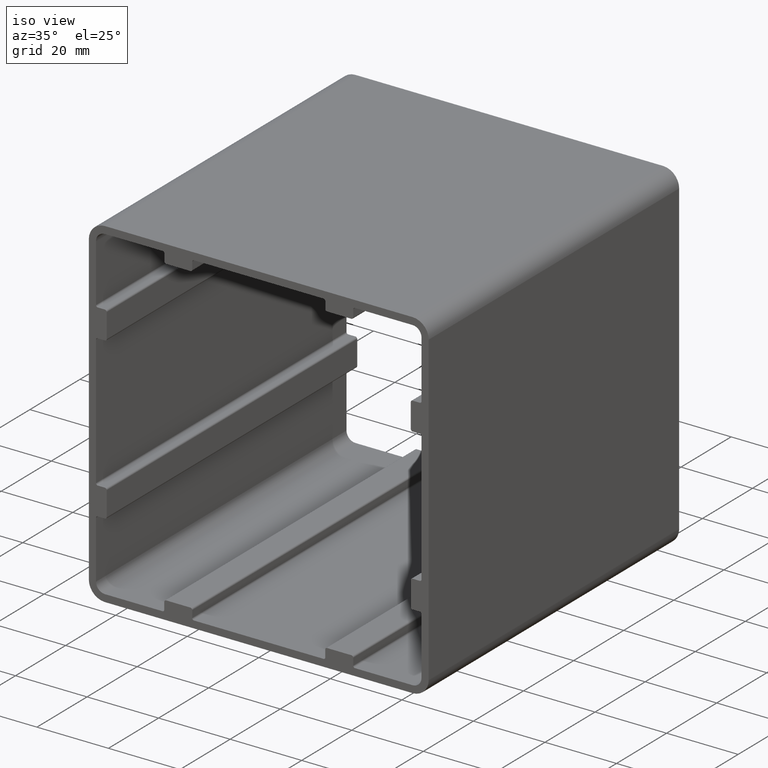
[diagram: clean part render]
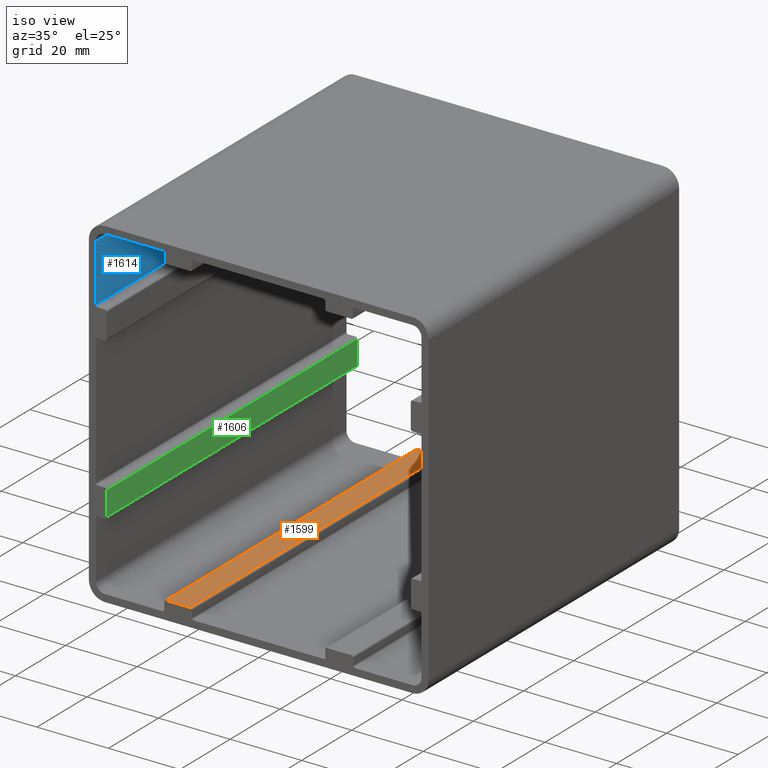
[diagram: same view with three faces highlighted in distinct colors, each labeled with its STEP entity id]
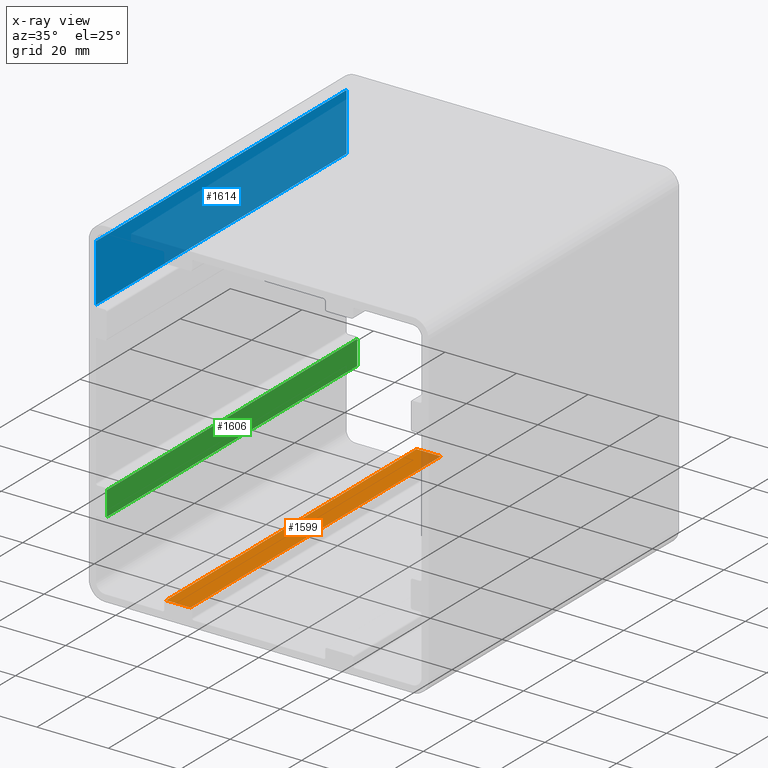
[diagram: x-ray of the same camera — body ghosted, the three highlighted faces saturated]
A machine part, iso view with three faces highlighted in distinct colors.
The next image is the same camera in x-ray (body ghosted, the three faces saturated) — at least one of them is partly hidden behind the body in this view.
Their STEP definitions:

[orange] entity #1599 — the highlighted planar face has unit normal (0, 0, -1).
#41=PLANE('',#1781);
#113=FACE_OUTER_BOUND('',#197,.T.);
#197=EDGE_LOOP('',(#1393,#1394,#1395,#1396));
#254=LINE('',#2411,#414);
#291=LINE('',#2548,#451);
#365=LINE('',#2730,#525);
#366=LINE('',#2732,#526);
#414=VECTOR('',#1900,10.);
#451=VECTOR('',#2011,10.);
#525=VECTOR('',#2219,10.);
#526=VECTOR('',#2222,10.);
#679=VERTEX_POINT('',#2408);
#680=VERTEX_POINT('',#2410);
#742=VERTEX_POINT('',#2545);
#743=VERTEX_POINT('',#2547);
#841=EDGE_CURVE('',#679,#680,#254,.T.);
#910=EDGE_CURVE('',#742,#743,#291,.T.);
#1005=EDGE_CURVE('',#743,#679,#365,.T.);
#1006=EDGE_CURVE('',#680,#742,#366,.T.);
#1393=ORIENTED_EDGE('',*,*,#1005,.F.);
#1394=ORIENTED_EDGE('',*,*,#910,.F.);
#1395=ORIENTED_EDGE('',*,*,#1006,.F.);
#1396=ORIENTED_EDGE('',*,*,#841,.F.);
#1599=ADVANCED_FACE('',(#113),#41,.F.);
#1781=AXIS2_PLACEMENT_3D('',#2731,#2220,#2221);
#1900=DIRECTION('',(-1.,0.,0.));
#2011=DIRECTION('',(1.,0.,0.));
#2219=DIRECTION('',(0.,-1.,0.));
#2220=DIRECTION('center_axis',(0.,0.,-1.));
#2221=DIRECTION('ref_axis',(1.,0.,0.));
#2222=DIRECTION('',(0.,1.,0.));
#2408=CARTESIAN_POINT('',(-19.1,0.,-42.5));
#2410=CARTESIAN_POINT('',(-25.9,0.,-42.5));
#2411=CARTESIAN_POINT('',(-13.2,0.,-42.5));
#2545=CARTESIAN_POINT('',(-25.9,100.,-42.5));
#2547=CARTESIAN_POINT('',(-19.1,100.,-42.5));
#2548=CARTESIAN_POINT('',(-13.2,100.,-42.5));
#2730=CARTESIAN_POINT('',(-19.1,100.,-42.5));
#2731=CARTESIAN_POINT('Origin',(-26.4,100.,-42.5));
#2732=CARTESIAN_POINT('',(-25.9,100.,-42.5));

[blue] entity #1614 — the highlighted planar face has unit normal (-1, 0, 0).
#47=PLANE('',#1796);
#128=FACE_OUTER_BOUND('',#212,.T.);
#212=EDGE_LOOP('',(#1453,#1454,#1455,#1456));
#265=LINE('',#2455,#425);
#280=LINE('',#2504,#440);
#323=LINE('',#2649,#483);
#381=LINE('',#2761,#541);
#425=VECTOR('',#1933,10.);
#440=VECTOR('',#1978,10.);
#483=VECTOR('',#2099,10.);
#541=VECTOR('',#2265,10.);
#701=VERTEX_POINT('',#2452);
#702=VERTEX_POINT('',#2454);
#720=VERTEX_POINT('',#2501);
#721=VERTEX_POINT('',#2503);
#863=EDGE_CURVE('',#701,#702,#265,.T.);
#888=EDGE_CURVE('',#720,#721,#280,.T.);
#963=EDGE_CURVE('',#702,#720,#323,.T.);
#1021=EDGE_CURVE('',#721,#701,#381,.T.);
#1453=ORIENTED_EDGE('',*,*,#963,.F.);
#1454=ORIENTED_EDGE('',*,*,#863,.F.);
#1455=ORIENTED_EDGE('',*,*,#1021,.F.);
#1456=ORIENTED_EDGE('',*,*,#888,.F.);
#1614=ADVANCED_FACE('',(#128),#47,.F.);
#1796=AXIS2_PLACEMENT_3D('',#2763,#2267,#2268);
#1933=DIRECTION('',(0.,0.,1.));
#1978=DIRECTION('',(0.,0.,-1.));
#2099=DIRECTION('',(0.,1.,0.));
#2265=DIRECTION('',(0.,-1.,0.));
#2267=DIRECTION('center_axis',(-1.,0.,0.));
#2268=DIRECTION('ref_axis',(0.,0.,-1.));
#2452=CARTESIAN_POINT('',(-45.5,0.,26.9));
#2454=CARTESIAN_POINT('',(-45.5,0.,43.));
#2455=CARTESIAN_POINT('',(-45.5,0.,22.75));
#2501=CARTESIAN_POINT('',(-45.5,100.,43.));
#2503=CARTESIAN_POINT('',(-45.5,100.,26.9));
#2504=CARTESIAN_POINT('',(-45.5,100.,22.75));
#2649=CARTESIAN_POINT('',(-45.5,100.,43.));
#2761=CARTESIAN_POINT('',(-45.5,100.,26.9));
#2763=CARTESIAN_POINT('Origin',(-45.5,100.,45.5));

[green] entity #1606 — the highlighted planar face has unit normal (-1, 0, 0).
#44=PLANE('',#1788);
#120=FACE_OUTER_BOUND('',#204,.T.);
#204=EDGE_LOOP('',(#1421,#1422,#1423,#1424));
#259=LINE('',#2431,#419);
#286=LINE('',#2528,#446);
#372=LINE('',#2744,#532);
#373=LINE('',#2746,#533);
#419=VECTOR('',#1915,10.);
#446=VECTOR('',#1996,10.);
#532=VECTOR('',#2240,10.);
#533=VECTOR('',#2243,10.);
#689=VERTEX_POINT('',#2428);
#690=VERTEX_POINT('',#2430);
#732=VERTEX_POINT('',#2525);
#733=VERTEX_POINT('',#2527);
#851=EDGE_CURVE('',#689,#690,#259,.T.);
#900=EDGE_CURVE('',#732,#733,#286,.T.);
#1012=EDGE_CURVE('',#733,#689,#372,.T.);
#1013=EDGE_CURVE('',#690,#732,#373,.T.);
#1421=ORIENTED_EDGE('',*,*,#1012,.F.);
#1422=ORIENTED_EDGE('',*,*,#900,.F.);
#1423=ORIENTED_EDGE('',*,*,#1013,.F.);
#1424=ORIENTED_EDGE('',*,*,#851,.F.);
#1606=ADVANCED_FACE('',(#120),#44,.F.);
#1788=AXIS2_PLACEMENT_3D('',#2745,#2241,#2242);
#1915=DIRECTION('',(0.,0.,1.));
#1996=DIRECTION('',(0.,0.,-1.));
#2240=DIRECTION('',(0.,-1.,0.));
#2241=DIRECTION('center_axis',(-1.,0.,0.));
#2242=DIRECTION('ref_axis',(0.,0.,-1.));
#2243=DIRECTION('',(0.,1.,0.));
#2428=CARTESIAN_POINT('',(-42.5,0.,-25.9));
#2430=CARTESIAN_POINT('',(-42.5,0.,-19.1));
#2431=CARTESIAN_POINT('',(-42.5,0.,-9.3));
#2525=CARTESIAN_POINT('',(-42.5,100.,-19.1));
#2527=CARTESIAN_POINT('',(-42.5,100.,-25.9));
#2528=CARTESIAN_POINT('',(-42.5,100.,-9.3));
#2744=CARTESIAN_POINT('',(-42.5,100.,-25.9));
#2745=CARTESIAN_POINT('Origin',(-42.5,100.,-18.6));
#2746=CARTESIAN_POINT('',(-42.5,100.,-19.1));